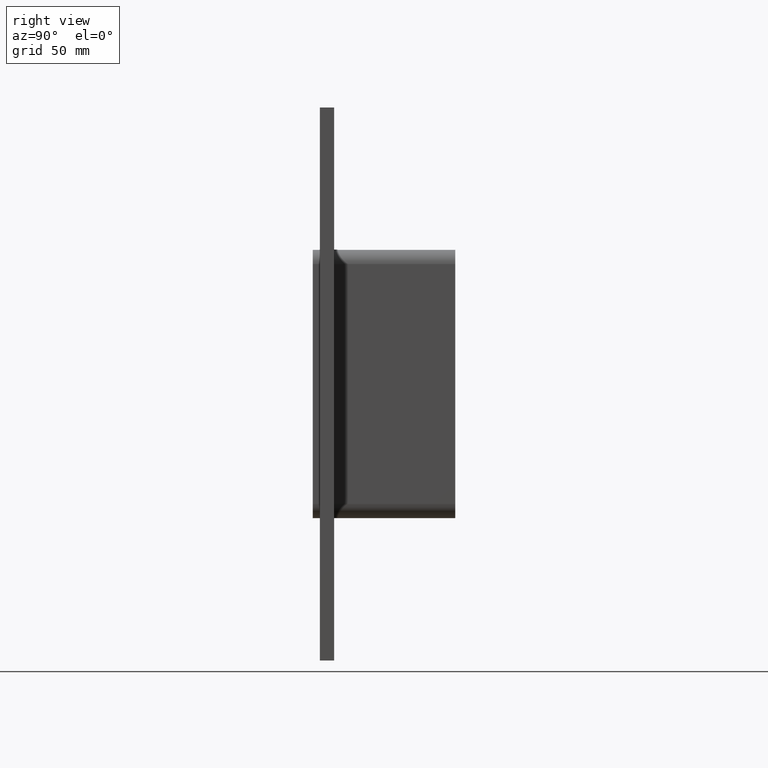
[diagram: clean part render]
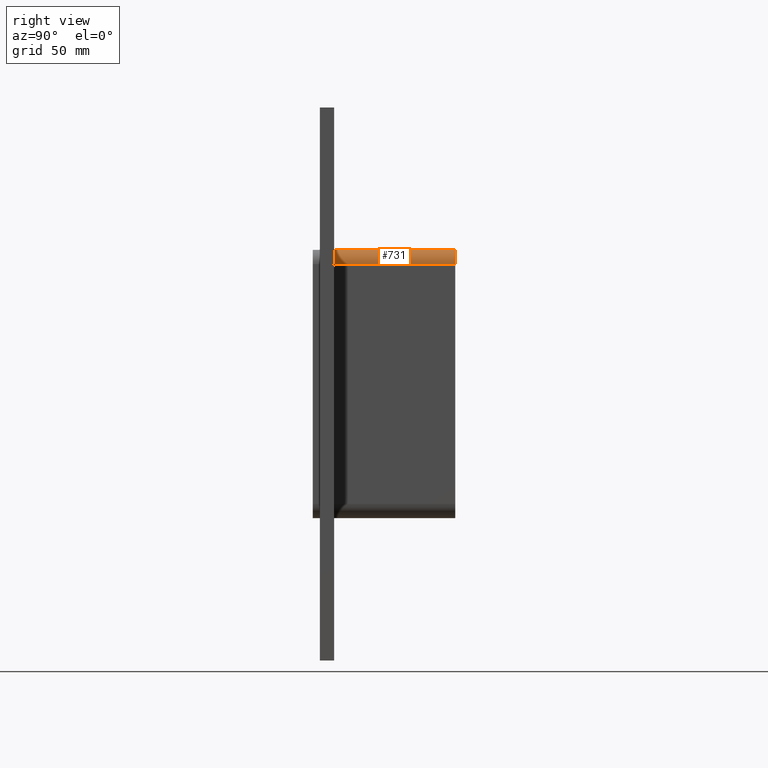
[diagram: same view with one face highlighted and labeled with its STEP entity id]
A machine part, right view. The second image highlights one B-rep face of the part: STEP entity #731.
In plain terms, the highlighted cylindrical surface (edge-blend (fillet) strip) has radius 6 mm, axis along (0, -1, 0).
Its self-contained STEP definition (entity closure, byte-faithful):
#383=CARTESIAN_POINT('',(36.250000000000007,6.000000000000001,50.500000000000007));
#384=VERTEX_POINT('',#383);
#391=CARTESIAN_POINT('',(30.250000000000004,6.000000000000001,56.5));
#392=VERTEX_POINT('',#391);
#393=CARTESIAN_POINT('',(30.250000000000004,6.000000000000001,50.500000000000007));
#394=DIRECTION('',(0.0,1.0,0.0));
#395=DIRECTION('',(0.707106781186547,0.0,0.707106781186547));
#396=AXIS2_PLACEMENT_3D('',#393,#394,#395);
#397=CIRCLE('',#396,6.0);
#398=EDGE_CURVE('',#392,#384,#397,.T.);
#700=CARTESIAN_POINT('',(30.250000000000004,0.0,50.500000000000007));
#701=DIRECTION('',(0.0,-1.0,0.0));
#702=DIRECTION('',(0.707106781186547,0.0,0.707106781186547));
#703=AXIS2_PLACEMENT_3D('',#700,#701,#702);
#704=CYLINDRICAL_SURFACE('',#703,6.000000000000001);
#705=ORIENTED_EDGE('',*,*,#398,.T.);
#706=CARTESIAN_POINT('',(36.250000000000007,57.0,50.500000000000007));
#707=VERTEX_POINT('',#706);
#708=CARTESIAN_POINT('',(36.250000000000007,6.000000000000001,50.500000000000007));
#709=DIRECTION('',(0.0,1.0,0.0));
#710=VECTOR('',#709,51.0);
#711=LINE('',#708,#710);
#712=EDGE_CURVE('',#384,#707,#711,.T.);
#713=ORIENTED_EDGE('',*,*,#712,.T.);
#714=CARTESIAN_POINT('',(30.25,57.0,56.5));
#715=VERTEX_POINT('',#714);
#716=CARTESIAN_POINT('',(30.250000000000004,57.0,50.500000000000007));
#717=DIRECTION('',(0.0,-1.0,0.0));
#718=DIRECTION('',(0.707106781186547,0.0,0.707106781186547));
#719=AXIS2_PLACEMENT_3D('',#716,#717,#718);
#720=CIRCLE('',#719,6.0);
#721=EDGE_CURVE('',#707,#715,#720,.T.);
#722=ORIENTED_EDGE('',*,*,#721,.T.);
#723=CARTESIAN_POINT('',(30.250000000000004,57.0,56.5));
#724=DIRECTION('',(0.0,-1.0,0.0));
#725=VECTOR('',#724,51.0);
#726=LINE('',#723,#725);
#727=EDGE_CURVE('',#715,#392,#726,.T.);
#728=ORIENTED_EDGE('',*,*,#727,.T.);
#729=EDGE_LOOP('',(#705,#713,#722,#728));
#730=FACE_OUTER_BOUND('',#729,.T.);
#731=ADVANCED_FACE('',(#730),#704,.T.);